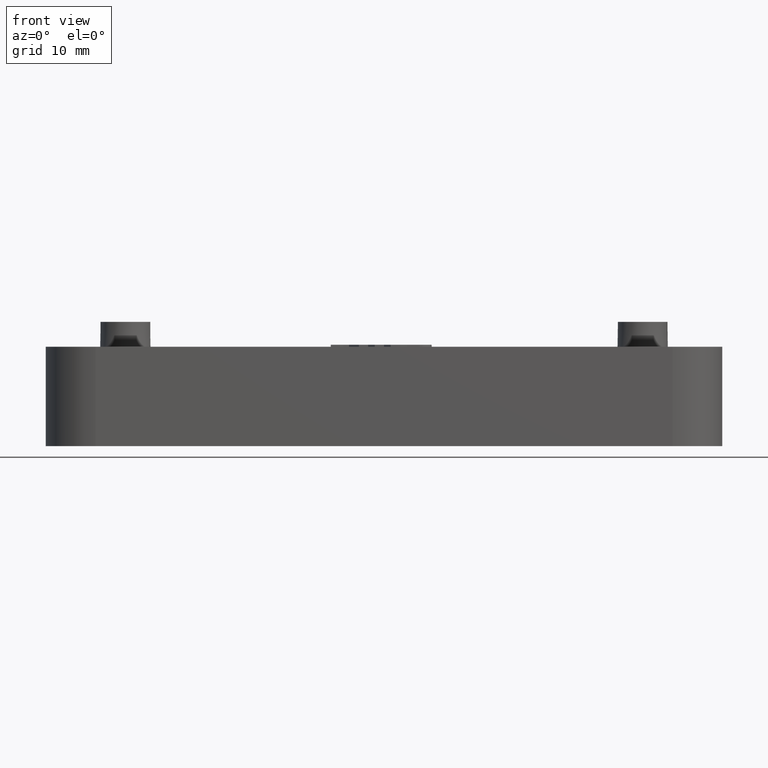
[diagram: clean part render]
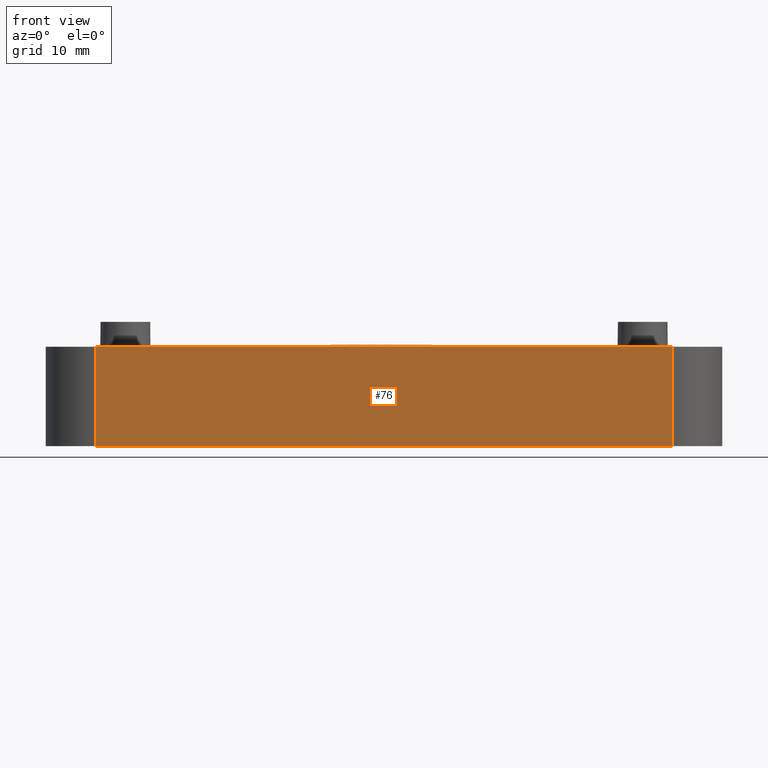
[diagram: same view with one face highlighted and labeled with its STEP entity id]
A machine part, front view. The second image highlights one B-rep face of the part: STEP entity #76.
In plain terms, the highlighted planar face has unit normal (0, 1, -0).
Its self-contained STEP definition (entity closure, byte-faithful):
#76 = ADVANCED_FACE( '', ( #453 ), #454, .F. );
#453 = FACE_OUTER_BOUND( '', #1247, .T. );
#454 = PLANE( '', #1248 );
#1247 = EDGE_LOOP( '', ( #2073, #2074, #2075, #2076 ) );
#1248 = AXIS2_PLACEMENT_3D( '', #2077, #2078, #2079 );
#2073 = ORIENTED_EDGE( '', *, *, #5030, .F. );
#2074 = ORIENTED_EDGE( '', *, *, #5031, .T. );
#2075 = ORIENTED_EDGE( '', *, *, #5010, .T. );
#2076 = ORIENTED_EDGE( '', *, *, #5032, .T. );
#2077 = CARTESIAN_POINT( '', ( 46.5000000000000, -12.5000000000000, 1.46431667789534E-014 ) );
#2078 = DIRECTION( '', ( 0.000000000000000, 1.00000000000000, -6.12303176911189E-017 ) );
#2079 = DIRECTION( '', ( 1.00000000000000, 0.000000000000000, 0.000000000000000 ) );
#5010 = EDGE_CURVE( '', #5943, #5955, #5957, .T. );
#5030 = EDGE_CURVE( '', #5996, #5997, #5998, .T. );
#5031 = EDGE_CURVE( '', #5996, #5943, #5999, .T. );
#5032 = EDGE_CURVE( '', #5955, #5997, #6000, .T. );
#5943 = VERTEX_POINT( '', #7502 );
#5955 = VERTEX_POINT( '', #7517 );
#5957 = LINE( '', #7519, #7520 );
#5996 = VERTEX_POINT( '', #7574 );
#5997 = VERTEX_POINT( '', #7575 );
#5998 = LINE( '', #7576, #7577 );
#5999 = LINE( '', #7578, #7579 );
#6000 = LINE( '', #7580, #7581 );
#7502 = CARTESIAN_POINT( '', ( 29.0000000000000, -12.5000000000000, 10.0000000000000 ) );
#7517 = CARTESIAN_POINT( '', ( -29.0000000000000, -12.5000000000000, 10.0000000000000 ) );
#7519 = CARTESIAN_POINT( '', ( 46.5000000000000, -12.5000000000000, 10.0000000000000 ) );
#7520 = VECTOR( '', #9954, 1000.00000000000 );
#7574 = CARTESIAN_POINT( '', ( 29.0000000000000, -12.5000000000000, 1.46431667789534E-014 ) );
#7575 = CARTESIAN_POINT( '', ( -29.0000000000000, -12.5000000000000, 1.46431667789534E-014 ) );
#7576 = CARTESIAN_POINT( '', ( 46.5000000000000, -12.5000000000000, 1.46431667789534E-014 ) );
#7577 = VECTOR( '', #9982, 1000.00000000000 );
#7578 = CARTESIAN_POINT( '', ( 29.0000000000000, -12.5000000000000, -69.3314196761559 ) );
#7579 = VECTOR( '', #9983, 1000.00000000000 );
#7580 = CARTESIAN_POINT( '', ( -29.0000000000000, -12.5000000000000, 95.1170716855138 ) );
#7581 = VECTOR( '', #9984, 1000.00000000000 );
#9954 = DIRECTION( '', ( -1.00000000000000, 0.000000000000000, 0.000000000000000 ) );
#9982 = DIRECTION( '', ( -1.00000000000000, 0.000000000000000, 0.000000000000000 ) );
#9983 = DIRECTION( '', ( 1.60751816480226E-016, 1.81794180051289E-016, 1.00000000000000 ) );
#9984 = DIRECTION( '', ( 1.60751816480226E-016, -1.81794180051289E-016, -1.00000000000000 ) );